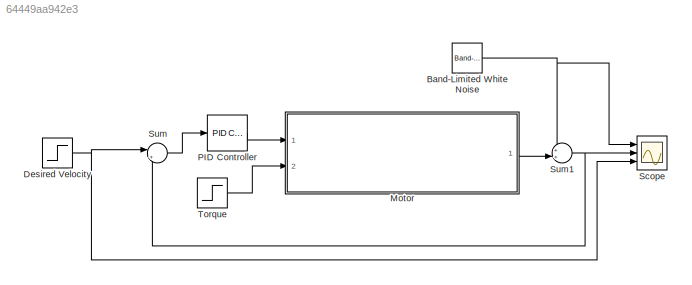
MODEL slx_64449aa942e3
KIND model
CONFIG AbsTol = auto
CONFIG EnableMultiTasking = off
CONFIG FixedStep = auto
CONFIG MaxStep = auto
CONFIG MinStep = auto
CONFIG RelTol = 1e-3
CONFIG SampleTimeConstraint = Unconstrained
CONFIG Solver = VariableStepAuto
CONFIG SolverName = VariableStepAuto
CONFIG StartTime = 0.0
CONFIG StopTime = 10
BLOCK [Reference] Band-Limited White Noise  REF=simulink/Sources/Band-Limited
White Noise
  Ports = [0, 1]
  SourceBlock = simulink/Sources/Band-Limited\nWhite Noise
  SourceProductBaseCode = SL
  SourceProductName = Simulink
  SourceType = Band-Limited White Noise.
BLOCK [Step] Desired Velocity
  SampleTime = 0
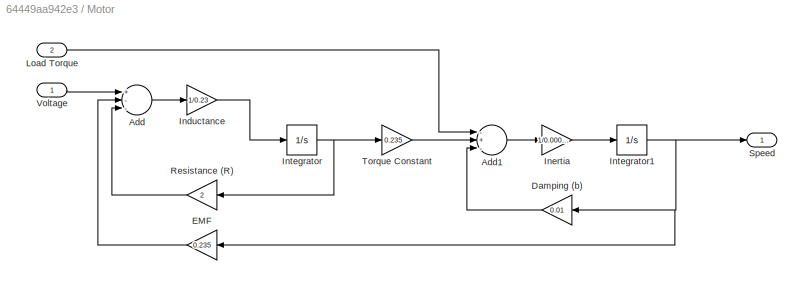
BLOCK [SubSystem] Motor
  Ports = [2, 1]
  RequestExecContextInheritance = off
BLOCK [Sum] Motor/Add
  InputSameDT = off
  Inputs = +--
  OutDataTypeStr = Inherit: Inherit via internal rule
  Ports = [3, 1]
  SaturateOnIntegerOverflow = off
BLOCK [Sum] Motor/Add1
  InputSameDT = off
  Inputs = -+-
  OutDataTypeStr = Inherit: Inherit via internal rule
  Ports = [3, 1]
  SaturateOnIntegerOverflow = off
BLOCK [Gain] Motor/Damping (b)
  Gain = 0.01
  OutDataTypeStr = Inherit: Inherit via internal rule
  ParamDataTypeStr = Inherit: Inherit via internal rule
  SaturateOnIntegerOverflow = off
BLOCK [Gain] Motor/EMF
  Gain = 0.235
  OutDataTypeStr = Inherit: Inherit via internal rule
  ParamDataTypeStr = Inherit: Inherit via internal rule
  SaturateOnIntegerOverflow = off
BLOCK [Gain] Motor/Inductance
  Gain = 1/0.23
  OutDataTypeStr = Inherit: Inherit via internal rule
  ParamDataTypeStr = Inherit: Inherit via internal rule
  SaturateOnIntegerOverflow = off
BLOCK [Gain] Motor/Inertia 
  Gain = 1/0.000052
  OutDataTypeStr = Inherit: Inherit via internal rule
  ParamDataTypeStr = Inherit: Inherit via internal rule
  SaturateOnIntegerOverflow = off
BLOCK [Integrator] Motor/Integrator
  Ports = [1, 1]
BLOCK [Integrator] Motor/Integrator1
  Ports = [1, 1]
BLOCK [Inport] Motor/Load Torque 
  IconDisplay = Port number
  Port = 2
BLOCK [Gain] Motor/Resistance (R)
  Gain = 2
  OutDataTypeStr = Inherit: Inherit via internal rule
  ParamDataTypeStr = Inherit: Inherit via internal rule
  SaturateOnIntegerOverflow = off
BLOCK [Outport] Motor/Speed 
  IconDisplay = Port number
BLOCK [Gain] Motor/Torque Constant
  Gain = 0.235
  OutDataTypeStr = Inherit: Inherit via internal rule
  ParamDataTypeStr = Inherit: Inherit via internal rule
  SaturateOnIntegerOverflow = off
BLOCK [Inport] Motor/Voltage
  IconDisplay = Port number
BLOCK [Reference] PID Controller  REF=simulink/Continuous/PID Controller
  Ports = [1, 1]
  SourceBlock = simulink/Continuous/PID Controller
  SourceProductBaseCode = SL
  SourceProductName = Simulink
  SourceType = PID 1dof
BLOCK [Scope] Scope
  Floating = off
  NumInputPorts = 3
  Ports = [3]
  ScopeSpecificationString = Simulink.scopes.TimeScopeBlockCfg('CurrentConfiguration', extmgr.ConfigurationSet(extmgr.Configuration('Core','General UI',true),extmgr.Configuration('Core','Source UI',true),extmgr.Configuration('Sources','WiredSimulink',true),extmgr.Configuration('Visuals','Time Domain',true,'SerializedDisplays',{struct('MinYLimReal','-0.73406','MaxYLimReal','2.03337','YLabelReal','','MinYLimMag','0.00000','MaxY...<+1395ch>
BLOCK [Sum] Sum
  IconShape = round
  InputSameDT = off
  Inputs = |+-
  OutDataTypeStr = Inherit: Inherit via internal rule
  Ports = [2, 1]
  SaturateOnIntegerOverflow = off
BLOCK [Sum] Sum1
  IconShape = round
  InputSameDT = off
  Inputs = ++|
  OutDataTypeStr = Inherit: Inherit via internal rule
  Ports = [2, 1]
  SaturateOnIntegerOverflow = off
BLOCK [Step] Torque 
  After = 0
  SampleTime = 0
  Time = 20
NET Band-Limited White Noise:1 -> Scope:1, Sum1:1
NET Desired Velocity:1 -> Scope:3, Sum:1
LINE Motor/Add1:1 -> Motor/Inertia :1
LINE Motor/Add:1 -> Motor/Inductance:1
LINE Motor/Damping (b):1 -> Motor/Add1:3
LINE Motor/EMF:1 -> Motor/Add:2
LINE Motor/Inductance:1 -> Motor/Integrator:1
LINE Motor/Inertia :1 -> Motor/Integrator1:1
NET Motor/Integrator1:1 -> Motor/Damping (b):1, Motor/EMF:1, Motor/Speed :1
NET Motor/Integrator:1 -> Motor/Resistance (R):1, Motor/Torque Constant:1
LINE Motor/Load Torque :1 -> Motor/Add1:1
LINE Motor/Resistance (R):1 -> Motor/Add:3
LINE Motor/Torque Constant:1 -> Motor/Add1:2
LINE Motor/Voltage:1 -> Motor/Add:1
LINE Motor:1 -> Sum1:2
LINE PID Controller:1 -> Motor:1
NET Sum1:1 -> Scope:2, Sum:2
LINE Sum:1 -> PID Controller:1
LINE Torque :1 -> Motor:2
note: NET lines group one-source signal fan-out (src -> all destinations, sorted); 1:1 wires keep LINE
